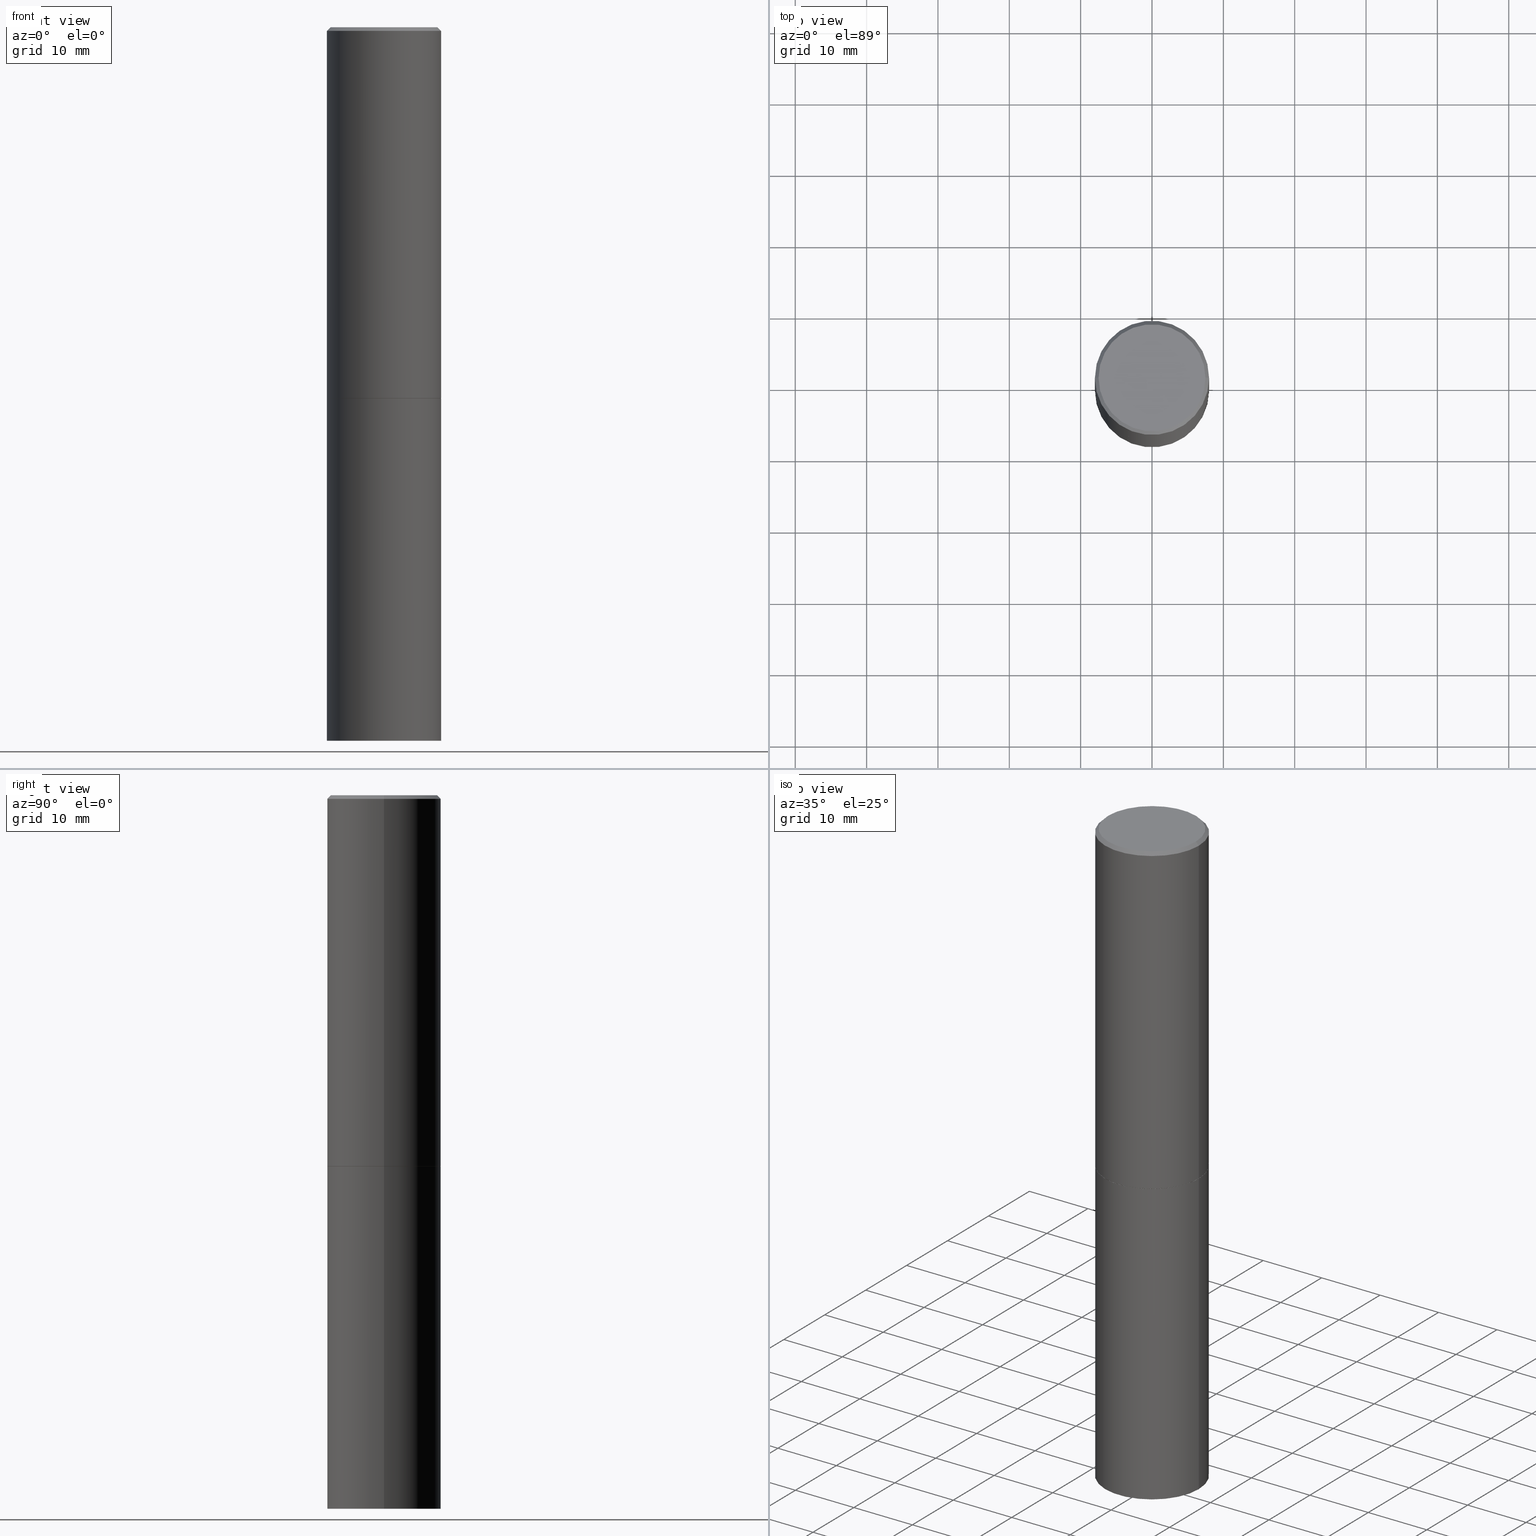
[diagram: canonical four-view strip — front | top / right | iso, engineering-drawing reading convention]
A machine part, canonical four-view strip (front | top / right | iso — engineering-drawing reading convention). The complete STEP part file that produces these views, byte-faithful:
ISO-10303-21;
HEADER;
FILE_DESCRIPTION (( 'STEP AP203' ),
    '1' );
FILE_NAME ('74482.STEP',
    '2024-02-29T11:44:14',
    ( '' ),
    ( '' ),
    'SwSTEP 2.0',
    'SolidWorks 2023',
    '' );
FILE_SCHEMA (( 'CONFIG_CONTROL_DESIGN' ));
ENDSEC;

DATA;
#1 = VERTEX_POINT ( 'NONE', #165 ) ;
#2 = DIRECTION ( 'NONE',  ( -2.445468806185136597E-29, 3.491481338843145583E-15, 1.000000000000000000 ) ) ;
#3 = DIRECTION ( 'NONE',  ( -2.445468806185136597E-29, 3.491481338843145583E-15, 1.000000000000000000 ) ) ;
#4 = ORIENTED_EDGE ( 'NONE', *, *, #10, .T. ) ;
#5 = CLOSED_SHELL ( 'NONE', ( #319, #277, #64, #117, #199, #144, #136, #37 ) ) ;
#6 = EDGE_CURVE ( 'NONE', #115, #343, #211, .T. ) ;
#7 = AXIS2_PLACEMENT_3D ( 'NONE', #265, #77, #9 ) ;
#8 = ORIENTED_EDGE ( 'NONE', *, *, #6, .T. ) ;
#9 = DIRECTION ( 'NONE',  ( 1.000000000000000000, 0.000000000000000000, 0.000000000000000000 ) ) ;
#10 = EDGE_CURVE ( 'NONE', #18, #115, #139, .T. ) ;
#11 = VERTEX_POINT ( 'NONE', #112 ) ;
#12 = DIRECTION ( 'NONE',  ( -2.445468806185136597E-29, 3.491481338843145583E-15, 1.000000000000000000 ) ) ;
#13 = AXIS2_PLACEMENT_3D ( 'NONE', #114, #232, #338 ) ;
#14 = APPLICATION_PROTOCOL_DEFINITION ( 'international standard', 'config_control_design', 1994, #317 ) ;
#15 = COORDINATED_UNIVERSAL_TIME_OFFSET ( 5, 0, .BEHIND. ) ;
#16 = VERTEX_POINT ( 'NONE', #250 ) ;
#17 = AXIS2_PLACEMENT_3D ( 'NONE', #34, #196, #230 ) ;
#18 = VERTEX_POINT ( 'NONE', #162 ) ;
#19 = PERSON_AND_ORGANIZATION_ROLE ( 'creator' ) ;
#20 = DIRECTION ( 'NONE',  ( -2.445468806185136597E-29, 3.491481338843145583E-15, 1.000000000000000000 ) ) ;
#21 = ORIENTED_EDGE ( 'NONE', *, *, #293, .F. ) ;
#22 = COORDINATED_UNIVERSAL_TIME_OFFSET ( 5, 0, .BEHIND. ) ;
#23 = CARTESIAN_POINT ( 'NONE',  ( 5.006363740022209999E-29, -7.147760596879685046E-15, -2.047199999999999243 ) ) ;
#24 = CALENDAR_DATE ( 2024, 29, 2 ) ;
#25 = CARTESIAN_POINT ( 'NONE',  ( 5.006363740022211120E-29, -7.147760596879686624E-15, -2.047199999999999687 ) ) ;
#26 = EDGE_LOOP ( 'NONE', ( #48, #143, #285, #111 ) ) ;
#27 =( GEOMETRIC_REPRESENTATION_CONTEXT ( 3 ) GLOBAL_UNCERTAINTY_ASSIGNED_CONTEXT ( ( #205 ) ) GLOBAL_UNIT_ASSIGNED_CONTEXT ( ( #98, #151, #153 ) ) REPRESENTATION_CONTEXT ( 'NONE', 'WORKASPACE' ) );
#28 = DIRECTION ( 'NONE',  ( 1.000000000000000000, -6.982962677686265922E-15, 4.876176775795935793E-29 ) ) ;
#29 = APPROVAL_ROLE ( '' ) ;
#30 = DIRECTION ( 'NONE',  ( -2.445468806185136597E-29, 3.491481338843145583E-15, 1.000000000000000000 ) ) ;
#31 = CARTESIAN_POINT ( 'NONE',  ( 0.000000000000000000, 0.000000000000000000, 0.000000000000000000 ) ) ;
#32 = ORIENTED_EDGE ( 'NONE', *, *, #110, .F. ) ;
#33 = DATE_AND_TIME ( #224, #352 ) ;
#34 = CARTESIAN_POINT ( 'NONE',  ( 0.000000000000000000, 0.000000000000000000, 0.000000000000000000 ) ) ;
#35 = PERSON_AND_ORGANIZATION ( #248, #233 ) ;
#36 = DIRECTION ( 'NONE',  ( 2.438088387897960049E-29, -3.491481338843145188E-15, -1.000000000000000000 ) ) ;
#37 = ADVANCED_FACE ( 'NONE', ( #158 ), #190, .F. ) ;
#38 = FACE_OUTER_BOUND ( 'NONE', #169, .T. ) ;
#39 = PRODUCT_DEFINITION_SHAPE ( 'NONE', 'NONE',  #300 ) ;
#40 = ORIENTED_EDGE ( 'NONE', *, *, #51, .T. ) ;
#41 = AXIS2_PLACEMENT_3D ( 'NONE', #204, #12, #315 ) ;
#42 = CARTESIAN_POINT ( 'NONE',  ( -2.087702828670439639E-46, 2.980686340760894400E-32, 8.537024980200822558E-18 ) ) ;
#43 = EDGE_LOOP ( 'NONE', ( #234, #207, #95, #126 ) ) ;
#44 = APPROVAL ( #362, 'UNSPECIFIED' ) ;
#45 = CONICAL_SURFACE ( 'NONE', #41, 0.3139500000000000068, 0.7853981633975507526 ) ;
#46 = CALENDAR_DATE ( 2024, 29, 2 ) ;
#47 = LINE ( 'NONE', #332, #152 ) ;
#48 = ORIENTED_EDGE ( 'NONE', *, *, #340, .F. ) ;
#49 = LINE ( 'NONE', #58, #219 ) ;
#50 = CIRCLE ( 'NONE', #351, 0.3149500000000000077 ) ;
#51 = EDGE_CURVE ( 'NONE', #361, #81, #306, .T. ) ;
#52 = DATE_AND_TIME ( #24, #99 ) ;
#53 = DIRECTION ( 'NONE',  ( -1.000000000000000000, 6.982962677686265922E-15, -4.876176775795935793E-29 ) ) ;
#54 = MANIFOLD_SOLID_BREP ( 'Body-Move/Copy2[1]', #167 ) ;
#55 = FACE_OUTER_BOUND ( 'NONE', #247, .T. ) ;
#56 = ORIENTED_EDGE ( 'NONE', *, *, #141, .T. ) ;
#57 = COORDINATED_UNIVERSAL_TIME_OFFSET ( 5, 0, .BEHIND. ) ;
#58 = CARTESIAN_POINT ( 'NONE',  ( 0.3149499999999997302, -2.230543471175005478E-15, -0.02000000000000006981 ) ) ;
#59 = AXIS2_PLACEMENT_3D ( 'NONE', #132, #189, #193 ) ;
#60 = AXIS2_PLACEMENT_3D ( 'NONE', #177, #30, #145 ) ;
#61 = LOCAL_TIME ( 6, 44, 14.00000000000000000, #82 ) ;
#62 = APPROVAL_DATE_TIME ( #33, #44 ) ;
#63 = FACE_OUTER_BOUND ( 'NONE', #140, .T. ) ;
#64 = ADVANCED_FACE ( 'NONE', ( #274 ), #227, .T. ) ;
#65 = DIRECTION ( 'NONE',  ( -2.445468806185136877E-29, 3.491481338843145188E-15, 1.000000000000000000 ) ) ;
#66 = DIRECTION ( 'NONE',  ( 1.000000000000000000, -6.982962677686264344E-15, 0.000000000000000000 ) ) ;
#67 = VERTEX_POINT ( 'NONE', #85 ) ;
#68 = AXIS2_PLACEMENT_3D ( 'NONE', #31, #281, #366 ) ;
#69 = AXIS2_PLACEMENT_3D ( 'NONE', #260, #3, #346 ) ;
#70 = CC_DESIGN_APPROVAL ( #44, ( #286 ) ) ;
#71 = FACE_OUTER_BOUND ( 'NONE', #175, .T. ) ;
#72 = FACE_OUTER_BOUND ( 'NONE', #303, .T. ) ;
#73 = ORIENTED_EDGE ( 'NONE', *, *, #119, .F. ) ;
#74 = DIRECTION ( 'NONE',  ( 1.000000000000000000, -6.982962677686267499E-15, 4.876053491004739391E-29 ) ) ;
#75 = AXIS2_PLACEMENT_3D ( 'NONE', #217, #137, #168 ) ;
#76 = AXIS2_PLACEMENT_3D ( 'NONE', #299, #84, #253 ) ;
#77 = DIRECTION ( 'NONE',  ( 0.000000000000000000, 0.000000000000000000, 1.000000000000000000 ) ) ;
#78 = EDGE_LOOP ( 'NONE', ( #56, #154, #282, #295 ) ) ;
#79 = DIRECTION ( 'NONE',  ( -2.445468806185136597E-29, 3.491481338843145583E-15, 1.000000000000000000 ) ) ;
#80 = PERSON_AND_ORGANIZATION ( #248, #233 ) ;
#81 = VERTEX_POINT ( 'NONE', #304 ) ;
#82 = COORDINATED_UNIVERSAL_TIME_OFFSET ( 5, 0, .BEHIND. ) ;
#83 = CARTESIAN_POINT ( 'NONE',  ( 5.006363740022209999E-29, -7.147760596879685046E-15, -2.047199999999999243 ) ) ;
#84 = DIRECTION ( 'NONE',  ( -2.445468806185136597E-29, 3.491481338843145583E-15, 1.000000000000000000 ) ) ;
#85 = CARTESIAN_POINT ( 'NONE',  ( -0.3149500000000000077, -8.209006967676138246E-15, -3.937000000000000277 ) ) ;
#86 = APPROVAL_DATE_TIME ( #328, #223 ) ;
#87 = EDGE_LOOP ( 'NONE', ( #32, #235, #128, #337 ) ) ;
#88 = CC_DESIGN_DATE_AND_TIME_ASSIGNMENT ( #353, #325, ( #300 ) ) ;
#89 = APPLICATION_PROTOCOL_DEFINITION ( 'international standard', 'config_control_design', 1994, #124 ) ;
#90 = DIRECTION ( 'NONE',  ( 1.000000000000000000, -6.982962677686264344E-15, 0.000000000000000000 ) ) ;
#91 = VECTOR ( 'NONE', #344, 39.37007874015748143 ) ;
#92 = DIRECTION ( 'NONE',  ( 1.000000000000000000, -6.982962677686267499E-15, 4.876053491004739391E-29 ) ) ;
#93 = PRODUCT ( '74482', '74482', '', ( #238 ) ) ;
#94 = FACE_OUTER_BOUND ( 'NONE', #78, .T. ) ;
#95 = ORIENTED_EDGE ( 'NONE', *, *, #267, .F. ) ;
#96 = CIRCLE ( 'NONE', #245, 0.3139500000000000068 ) ;
#97 =( LENGTH_UNIT ( ) NAMED_UNIT ( * ) SI_UNIT ( $, .METRE. ) );
#98 =( CONVERSION_BASED_UNIT ( 'INCH', #287 ) LENGTH_UNIT ( ) NAMED_UNIT ( #133 ) );
#99 = LOCAL_TIME ( 6, 44, 14.00000000000000000, #15 ) ;
#100 = DIRECTION ( 'NONE',  ( -2.445468806185136597E-29, 3.491481338843145583E-15, 1.000000000000000000 ) ) ;
#101 = AXIS2_PLACEMENT_3D ( 'NONE', #192, #107, #53 ) ;
#102 = CIRCLE ( 'NONE', #269, 0.3149500000000000077 ) ;
#103 = ORIENTED_EDGE ( 'NONE', *, *, #6, .F. ) ;
#104 = DIRECTION ( 'NONE',  ( 1.000000000000000000, -6.982962677686269866E-15, 0.000000000000000000 ) ) ;
#105 = ORIENTED_EDGE ( 'NONE', *, *, #270, .F. ) ;
#106 = PERSON_AND_ORGANIZATION_ROLE ( 'creator' ) ;
#107 = DIRECTION ( 'NONE',  ( 2.438088387897960049E-29, -3.491481338843145188E-15, -1.000000000000000000 ) ) ;
#108 = CONICAL_SURFACE ( 'NONE', #122, 0.3149499999999997302, 0.7853981633974471688 ) ;
#109 = ORIENTED_EDGE ( 'NONE', *, *, #127, .F. ) ;
#110 = EDGE_CURVE ( 'NONE', #67, #81, #329, .T. ) ;
#111 = ORIENTED_EDGE ( 'NONE', *, *, #10, .F. ) ;
#112 = CARTESIAN_POINT ( 'NONE',  ( 0.3149500000000000077, -9.343553210878133488E-15, -2.046199999999999797 ) ) ;
#113 = EDGE_CURVE ( 'NONE', #16, #173, #195, .T. ) ;
#114 = CARTESIAN_POINT ( 'NONE',  ( 5.003918271216025517E-29, -7.144269115540843617E-15, -2.046199999999999797 ) ) ;
#115 = VERTEX_POINT ( 'NONE', #214 ) ;
#116 = CARTESIAN_POINT ( 'NONE',  ( -0.3139500000000000068, -4.911713223612629246E-15, -2.047199999999999243 ) ) ;
#117 = ADVANCED_FACE ( 'NONE', ( #163 ), #108, .T. ) ;
#118 = CYLINDRICAL_SURFACE ( 'NONE', #17, 0.3149500000000000077 ) ;
#119 = EDGE_CURVE ( 'NONE', #1, #343, #49, .T. ) ;
#120 = LINE ( 'NONE', #256, #335 ) ;
#121 = EDGE_CURVE ( 'NONE', #173, #16, #96, .T. ) ;
#122 = AXIS2_PLACEMENT_3D ( 'NONE', #243, #333, #359 ) ;
#123 = APPROVAL_PERSON_ORGANIZATION ( #35, #44, #29 ) ;
#124 = APPLICATION_CONTEXT ( 'configuration controlled 3d designs of mechanical parts and assemblies' ) ;
#125 = PLANE ( 'NONE',  #290 ) ;
#126 = ORIENTED_EDGE ( 'NONE', *, *, #348, .F. ) ;
#127 = EDGE_CURVE ( 'NONE', #314, #115, #47, .T. ) ;
#128 = ORIENTED_EDGE ( 'NONE', *, *, #208, .T. ) ;
#129 = AXIS2_PLACEMENT_3D ( 'NONE', #272, #279, #28 ) ;
#130 = DATE_TIME_ROLE ( 'classification_date' ) ;
#131 = CONICAL_SURFACE ( 'NONE', #365, 0.3139500000000000068, 0.7853981633975507526 ) ;
#132 = CARTESIAN_POINT ( 'NONE',  ( 4.890937612370289799E-31, -6.982962677686315028E-17, -0.02000000000000006981 ) ) ;
#133 = DIMENSIONAL_EXPONENTS ( 1.000000000000000000, 0.000000000000000000, 0.000000000000000000, 0.000000000000000000, 0.000000000000000000, 0.000000000000000000, 0.000000000000000000 ) ;
#134 = APPROVAL_STATUS ( 'not_yet_approved' ) ;
#135 = DIRECTION ( 'NONE',  ( -2.445468806185136597E-29, 3.491481338843145583E-15, 1.000000000000000000 ) ) ;
#136 = ADVANCED_FACE ( 'NONE', ( #294 ), #221, .F. ) ;
#137 = DIRECTION ( 'NONE',  ( 2.445468806185136597E-29, -3.491481338843145583E-15, -1.000000000000000000 ) ) ;
#138 = PERSON_AND_ORGANIZATION ( #248, #233 ) ;
#139 = LINE ( 'NONE', #354, #261 ) ;
#140 = EDGE_LOOP ( 'NONE', ( #202, #21 ) ) ;
#141 = EDGE_CURVE ( 'NONE', #266, #67, #212, .T. ) ;
#142 = DIRECTION ( 'NONE',  ( -0.7071067811866199593, 7.493145998870616062E-15, 0.7071067811864750752 ) ) ;
#143 = ORIENTED_EDGE ( 'NONE', *, *, #119, .T. ) ;
#144 = ADVANCED_FACE ( 'NONE', ( #55 ), #131, .T. ) ;
#145 = DIRECTION ( 'NONE',  ( 1.000000000000000000, -6.982962677686266711E-15, 4.876176775795936353E-29 ) ) ;
#146 = CC_DESIGN_APPROVAL ( #345, ( #300 ) ) ;
#147 = DIRECTION ( 'NONE',  ( -2.445468806185136597E-29, 3.491481338843145583E-15, 1.000000000000000000 ) ) ;
#148 = DIRECTION ( 'NONE',  ( -1.000000000000000000, 6.982962677686265922E-15, -4.876176775795935793E-29 ) ) ;
#149 = DIRECTION ( 'NONE',  ( -2.445468806185136597E-29, 3.491481338843145583E-15, 1.000000000000000000 ) ) ;
#150 = CARTESIAN_POINT ( 'NONE',  ( 2.199284095337339175E-15, 0.3149499999999928468, -2.047200000000001019 ) ) ;
#151 =( NAMED_UNIT ( * ) PLANE_ANGLE_UNIT ( ) SI_UNIT ( $, .RADIAN. ) );
#152 = VECTOR ( 'NONE', #326, 39.37007874015748143 ) ;
#153 =( NAMED_UNIT ( * ) SI_UNIT ( $, .STERADIAN. ) SOLID_ANGLE_UNIT ( ) );
#154 = ORIENTED_EDGE ( 'NONE', *, *, #110, .T. ) ;
#155 = ORIENTED_EDGE ( 'NONE', *, *, #166, .T. ) ;
#156 = PERSON_AND_ORGANIZATION_ROLE ( 'classification_officer' ) ;
#157 = CC_DESIGN_DATE_AND_TIME_ASSIGNMENT ( #271, #130, ( #286 ) ) ;
#158 = FACE_OUTER_BOUND ( 'NONE', #159, .T. ) ;
#159 = EDGE_LOOP ( 'NONE', ( #341, #216 ) ) ;
#160 = CALENDAR_DATE ( 2024, 29, 2 ) ;
#161 = APPROVAL_PERSON_ORGANIZATION ( #291, #223, #188 ) ;
#162 = CARTESIAN_POINT ( 'NONE',  ( -0.2949499999999997124, 2.094539655171993740E-15, 8.537024980186296424E-18 ) ) ;
#163 = FACE_OUTER_BOUND ( 'NONE', #178, .T. ) ;
#164 = APPROVAL_DATE_TIME ( #52, #345 ) ;
#165 = CARTESIAN_POINT ( 'NONE',  ( 0.2949499999999997124, -2.127023677808858103E-15, 8.537024980215462707E-18 ) ) ;
#166 = EDGE_CURVE ( 'NONE', #81, #361, #218, .T. ) ;
#167 = CLOSED_SHELL ( 'NONE', ( #184, #283, #355, #179 ) ) ;
#168 = DIRECTION ( 'NONE',  ( -1.000000000000000000, 6.982962677686266711E-15, 0.000000000000000000 ) ) ;
#169 = EDGE_LOOP ( 'NONE', ( #40, #155 ) ) ;
#170 = SHAPE_DEFINITION_REPRESENTATION ( #39, #312 ) ;
#171 = DIRECTION ( 'NONE',  ( -1.000000000000000000, 6.982962677686265922E-15, -4.876176775795935793E-29 ) ) ;
#172 = CARTESIAN_POINT ( 'NONE',  ( 0.3149500000000000077, -1.594524612636275486E-14, -3.937000000000000277 ) ) ;
#173 = VERTEX_POINT ( 'NONE', #116 ) ;
#174 = CARTESIAN_POINT ( 'NONE',  ( 5.006363740022211120E-29, -7.147760596879686624E-15, -2.047199999999999687 ) ) ;
#175 = EDGE_LOOP ( 'NONE', ( #268, #357, #183, #105 ) ) ;
#176 = MANIFOLD_SOLID_BREP ( 'Body-Move/Copy2[2]', #5 ) ;
#177 = CARTESIAN_POINT ( 'NONE',  ( 0.000000000000000000, 0.000000000000000000, 0.000000000000000000 ) ) ;
#178 = EDGE_LOOP ( 'NONE', ( #73, #264, #4, #8 ) ) ;
#179 = ADVANCED_FACE ( 'NONE', ( #200 ), #118, .T. ) ;
#180 = AXIS2_PLACEMENT_3D ( 'NONE', #258, #36, #171 ) ;
#181 = CARTESIAN_POINT ( 'NONE',  ( 0.3149500000000000077, -9.347044692216978073E-15, -2.047199999999999687 ) ) ;
#182 = DESIGN_CONTEXT ( 'detailed design', #124, 'design' ) ;
#183 = ORIENTED_EDGE ( 'NONE', *, *, #289, .F. ) ;
#184 = ADVANCED_FACE ( 'NONE', ( #94 ), #313, .T. ) ;
#185 = CC_DESIGN_SECURITY_CLASSIFICATION ( #286, ( #316 ) ) ;
#186 = FACE_OUTER_BOUND ( 'NONE', #43, .T. ) ;
#187 = DIRECTION ( 'NONE',  ( -2.445468806185136597E-29, 3.491481338843145583E-15, 1.000000000000000000 ) ) ;
#188 = APPROVAL_ROLE ( '' ) ;
#189 = DIRECTION ( 'NONE',  ( -2.445468806185136597E-29, 3.491481338843145583E-15, 1.000000000000000000 ) ) ;
#190 = PLANE ( 'NONE',  #101 ) ;
#191 = PERSON_AND_ORGANIZATION_ROLE ( 'design_supplier' ) ;
#192 = CARTESIAN_POINT ( 'NONE',  ( 2.059624841783562091E-15, 0.2949499999999997124, -1.025543908401684366E-15 ) ) ;
#193 = DIRECTION ( 'NONE',  ( 1.000000000000000000, -6.982962677686266711E-15, 0.000000000000000000 ) ) ;
#194 = CC_DESIGN_PERSON_AND_ORGANIZATION_ASSIGNMENT ( #215, #19, ( #300 ) ) ;
#195 = CIRCLE ( 'NONE', #76, 0.3139500000000000068 ) ;
#196 = DIRECTION ( 'NONE',  ( -2.445468806185136597E-29, 3.491481338843145583E-15, 1.000000000000000000 ) ) ;
#197 = LINE ( 'NONE', #225, #201 ) ;
#198 = DIRECTION ( 'NONE',  ( 1.000000000000000000, -6.982962677686265922E-15, 4.876176775795935232E-29 ) ) ;
#199 = ADVANCED_FACE ( 'NONE', ( #72 ), #229, .T. ) ;
#200 = FACE_OUTER_BOUND ( 'NONE', #87, .T. ) ;
#201 = VECTOR ( 'NONE', #65, 39.37007874015748143 ) ;
#202 = ORIENTED_EDGE ( 'NONE', *, *, #141, .F. ) ;
#203 = LOCAL_TIME ( 6, 44, 14.00000000000000000, #273 ) ;
#204 = CARTESIAN_POINT ( 'NONE',  ( 5.006363740022209999E-29, -7.147760596879685046E-15, -2.047199999999999243 ) ) ;
#205 = UNCERTAINTY_MEASURE_WITH_UNIT (LENGTH_MEASURE( 1.000000000000000082E-05 ), #98, 'distance_accuracy_value', 'NONE');
#206 = DIRECTION ( 'NONE',  ( 1.000000000000000000, -6.982962677686266711E-15, 0.000000000000000000 ) ) ;
#207 = ORIENTED_EDGE ( 'NONE', *, *, #263, .T. ) ;
#208 = EDGE_CURVE ( 'NONE', #266, #361, #363, .T. ) ;
#209 = CARTESIAN_POINT ( 'NONE',  ( 9.627810689950883669E-29, -1.374596203102546341E-14, -3.937000000000000277 ) ) ;
#210 = ORIENTED_EDGE ( 'NONE', *, *, #270, .T. ) ;
#211 = CIRCLE ( 'NONE', #59, 0.3149499999999997302 ) ;
#212 = CIRCLE ( 'NONE', #239, 0.3149500000000000077 ) ;
#213 = CC_DESIGN_APPROVAL ( #223, ( #316 ) ) ;
#214 = CARTESIAN_POINT ( 'NONE',  ( -0.3149499999999997302, 2.129454468560424601E-15, -0.02000000000000006981 ) ) ;
#215 = PERSON_AND_ORGANIZATION ( #248, #233 ) ;
#216 = ORIENTED_EDGE ( 'NONE', *, *, #340, .T. ) ;
#217 = CARTESIAN_POINT ( 'NONE',  ( 4.890937612370289799E-31, -6.982962677686315028E-17, -0.02000000000000006981 ) ) ;
#218 = CIRCLE ( 'NONE', #342, 0.3149500000000000077 ) ;
#219 = VECTOR ( 'NONE', #276, 39.37007874015748143 ) ;
#220 = CALENDAR_DATE ( 2024, 29, 2 ) ;
#221 = PLANE ( 'NONE',  #129 ) ;
#222 = CARTESIAN_POINT ( 'NONE',  ( -0.3149500000000000077, 2.237854346276435590E-15, -1.549218606675782676E-29 ) ) ;
#223 = APPROVAL ( #134, 'UNSPECIFIED' ) ;
#224 = CALENDAR_DATE ( 2024, 29, 2 ) ;
#225 = CARTESIAN_POINT ( 'NONE',  ( 0.3149499999999998967, -2.199284095337288688E-15, 1.535751875536929289E-29 ) ) ;
#226 = ORIENTED_EDGE ( 'NONE', *, *, #305, .T. ) ;
#227 = CONICAL_SURFACE ( 'NONE', #75, 0.3149499999999997302, 0.7853981633974471688 ) ;
#228 = AXIS2_PLACEMENT_3D ( 'NONE', #42, #79, #74 ) ;
#229 = CYLINDRICAL_SURFACE ( 'NONE', #298, 0.3149499999999998967 ) ;
#230 = DIRECTION ( 'NONE',  ( 1.000000000000000000, -6.982962677686266711E-15, 4.876176775795936353E-29 ) ) ;
#231 = ORIENTED_EDGE ( 'NONE', *, *, #121, .F. ) ;
#232 = DIRECTION ( 'NONE',  ( -2.445468806185136597E-29, 3.491481338843145583E-15, 1.000000000000000000 ) ) ;
#233 = ORGANIZATION ( 'UNSPECIFIED', 'UNSPECIFIED', '' ) ;
#234 = ORIENTED_EDGE ( 'NONE', *, *, #113, .T. ) ;
#235 = ORIENTED_EDGE ( 'NONE', *, *, #293, .T. ) ;
#236 = CARTESIAN_POINT ( 'NONE',  ( 5.003918271216025517E-29, -7.144269115540843617E-15, -2.046199999999999797 ) ) ;
#237 = ORIENTED_EDGE ( 'NONE', *, *, #263, .F. ) ;
#238 = MECHANICAL_CONTEXT ( 'NONE', #317, 'mechanical' ) ;
#239 = AXIS2_PLACEMENT_3D ( 'NONE', #302, #135, #350 ) ;
#240 = DIRECTION ( 'NONE',  ( 2.438088387897960049E-29, -3.491481338843145188E-15, -1.000000000000000000 ) ) ;
#241 = CC_DESIGN_PERSON_AND_ORGANIZATION_ASSIGNMENT ( #356, #106, ( #316 ) ) ;
#242 = PERSON_AND_ORGANIZATION_ROLE ( 'design_owner' ) ;
#243 = CARTESIAN_POINT ( 'NONE',  ( 4.890937612370289799E-31, -6.982962677686315028E-17, -0.02000000000000006981 ) ) ;
#244 = AXIS2_PLACEMENT_3D ( 'NONE', #25, #251, #104 ) ;
#245 = AXIS2_PLACEMENT_3D ( 'NONE', #23, #20, #90 ) ;
#246 = APPROVAL_ROLE ( '' ) ;
#247 = EDGE_LOOP ( 'NONE', ( #237, #323, #259, #327 ) ) ;
#248 = PERSON ( 'UNSPECIFIED', 'UNSPECIFIED', 'UNSPECIFIED', ('UNSPECIFIED'), ('UNSPECIFIED'), ('UNSPECIFIED') ) ;
#249 = PRODUCT_RELATED_PRODUCT_CATEGORY ( 'detail', '', ( #93 ) ) ;
#250 = CARTESIAN_POINT ( 'NONE',  ( 0.3139500000000000068, -9.340061729539288903E-15, -2.047199999999999243 ) ) ;
#251 = DIRECTION ( 'NONE',  ( -2.445468806185136597E-29, 3.491481338843145583E-15, 1.000000000000000000 ) ) ;
#252 = CIRCLE ( 'NONE', #228, 0.2949499999999997124 ) ;
#253 = DIRECTION ( 'NONE',  ( 1.000000000000000000, -6.982962677686264344E-15, 0.000000000000000000 ) ) ;
#254 = EDGE_CURVE ( 'NONE', #18, #1, #360, .T. ) ;
#255 = PLANE ( 'NONE',  #180 ) ;
#256 = CARTESIAN_POINT ( 'NONE',  ( -0.3139500000000000068, -4.917011677960851648E-15, -2.047199999999999243 ) ) ;
#257 = APPROVAL_PERSON_ORGANIZATION ( #275, #345, #246 ) ;
#258 = CARTESIAN_POINT ( 'NONE',  ( 2.199284095337385323E-15, 0.3149499999999862965, -3.937000000000001165 ) ) ;
#259 = ORIENTED_EDGE ( 'NONE', *, *, #348, .T. ) ;
#260 = CARTESIAN_POINT ( 'NONE',  ( 4.890937612370289799E-31, -6.982962677686315028E-17, -0.02000000000000006981 ) ) ;
#261 = VECTOR ( 'NONE', #278, 39.37007874015748143 ) ;
#262 = VECTOR ( 'NONE', #309, 39.37007874015748143 ) ;
#263 = EDGE_CURVE ( 'NONE', #173, #314, #120, .T. ) ;
#264 = ORIENTED_EDGE ( 'NONE', *, *, #254, .F. ) ;
#265 = CARTESIAN_POINT ( 'NONE',  ( 0.000000000000000000, 0.000000000000000000, 0.000000000000000000 ) ) ;
#266 = VERTEX_POINT ( 'NONE', #172 ) ;
#267 = EDGE_CURVE ( 'NONE', #11, #314, #331, .T. ) ;
#268 = ORIENTED_EDGE ( 'NONE', *, *, #267, .T. ) ;
#269 = AXIS2_PLACEMENT_3D ( 'NONE', #209, #149, #349 ) ;
#270 = EDGE_CURVE ( 'NONE', #11, #343, #197, .T. ) ;
#271 = DATE_AND_TIME ( #160, #203 ) ;
#272 = CARTESIAN_POINT ( 'NONE',  ( 5.006363740022211680E-29, -7.147760596879688202E-15, -2.047200000000000131 ) ) ;
#273 = COORDINATED_UNIVERSAL_TIME_OFFSET ( 5, 0, .BEHIND. ) ;
#274 = FACE_OUTER_BOUND ( 'NONE', #26, .T. ) ;
#275 = PERSON_AND_ORGANIZATION ( #248, #233 ) ;
#276 = DIRECTION ( 'NONE',  ( 0.7071067811865466846, -7.319954787623252890E-15, -0.7071067811865483499 ) ) ;
#277 = ADVANCED_FACE ( 'NONE', ( #71 ), #280, .T. ) ;
#278 = DIRECTION ( 'NONE',  ( -0.7071067811865466846, 2.468850131082247989E-15, -0.7071067811865483499 ) ) ;
#279 = DIRECTION ( 'NONE',  ( -2.438088387897960049E-29, 3.491481338843145188E-15, 1.000000000000000000 ) ) ;
#280 = CYLINDRICAL_SURFACE ( 'NONE', #68, 0.3149499999999998967 ) ;
#281 = DIRECTION ( 'NONE',  ( -2.445468806185136597E-29, 3.491481338843145583E-15, 1.000000000000000000 ) ) ;
#282 = ORIENTED_EDGE ( 'NONE', *, *, #51, .F. ) ;
#283 = ADVANCED_FACE ( 'NONE', ( #63 ), #255, .T. ) ;
#284 = CARTESIAN_POINT ( 'NONE',  ( -2.087702828670439639E-46, 2.980686340760894400E-32, 8.537024980200822558E-18 ) ) ;
#285 = ORIENTED_EDGE ( 'NONE', *, *, #289, .T. ) ;
#286 = SECURITY_CLASSIFICATION ( '', '', #301 ) ;
#287 = LENGTH_MEASURE_WITH_UNIT ( LENGTH_MEASURE( 0.02539999999999999897 ), #97 );
#288 = CARTESIAN_POINT ( 'NONE',  ( 0.3139500000000000068, -9.340061729539288903E-15, -2.047199999999999243 ) ) ;
#289 = EDGE_CURVE ( 'NONE', #343, #115, #307, .T. ) ;
#290 = AXIS2_PLACEMENT_3D ( 'NONE', #150, #240, #148 ) ;
#291 = PERSON_AND_ORGANIZATION ( #248, #233 ) ;
#292 = EDGE_LOOP ( 'NONE', ( #339, #231 ) ) ;
#293 = EDGE_CURVE ( 'NONE', #67, #266, #102, .T. ) ;
#294 = FACE_OUTER_BOUND ( 'NONE', #292, .T. ) ;
#295 = ORIENTED_EDGE ( 'NONE', *, *, #208, .F. ) ;
#296 = PERSON_AND_ORGANIZATION ( #248, #233 ) ;
#297 = DIRECTION ( 'NONE',  ( -2.445468806185136877E-29, 3.491481338843145188E-15, 1.000000000000000000 ) ) ;
#298 = AXIS2_PLACEMENT_3D ( 'NONE', #311, #336, #198 ) ;
#299 = CARTESIAN_POINT ( 'NONE',  ( 5.006363740022209999E-29, -7.147760596879685046E-15, -2.047199999999999243 ) ) ;
#300 = PRODUCT_DEFINITION ( 'UNKNOWN', '', #316, #182 ) ;
#301 = SECURITY_CLASSIFICATION_LEVEL ( 'unclassified' ) ;
#302 = CARTESIAN_POINT ( 'NONE',  ( 9.627810689950883669E-29, -1.374596203102546341E-14, -3.937000000000000277 ) ) ;
#303 = EDGE_LOOP ( 'NONE', ( #109, #226, #210, #103 ) ) ;
#304 = CARTESIAN_POINT ( 'NONE',  ( -0.3149500000000000077, -8.209006967676138246E-15, -2.047199999999999687 ) ) ;
#305 = EDGE_CURVE ( 'NONE', #314, #11, #50, .T. ) ;
#306 = CIRCLE ( 'NONE', #244, 0.3149500000000000077 ) ;
#307 = CIRCLE ( 'NONE', #69, 0.3149499999999997302 ) ;
#308 = CARTESIAN_POINT ( 'NONE',  ( 0.3149500000000000077, -2.199284095337289871E-15, 1.535751875536930130E-29 ) ) ;
#309 = DIRECTION ( 'NONE',  ( -2.445468806185136877E-29, 3.491481338843145188E-15, 1.000000000000000000 ) ) ;
#310 = CC_DESIGN_PERSON_AND_ORGANIZATION_ASSIGNMENT ( #296, #191, ( #316 ) ) ;
#311 = CARTESIAN_POINT ( 'NONE',  ( 0.000000000000000000, 0.000000000000000000, 0.000000000000000000 ) ) ;
#312 = ADVANCED_BREP_SHAPE_REPRESENTATION ( '74482', ( #54, #176, #7 ), #27 ) ;
#313 = CYLINDRICAL_SURFACE ( 'NONE', #60, 0.3149500000000000077 ) ;
#314 = VERTEX_POINT ( 'NONE', #321 ) ;
#315 = DIRECTION ( 'NONE',  ( 1.000000000000000000, -6.982962677686264344E-15, 0.000000000000000000 ) ) ;
#316 = PRODUCT_DEFINITION_FORMATION_WITH_SPECIFIED_SOURCE ( 'ANY', '', #93, .NOT_KNOWN. ) ;
#317 = APPLICATION_CONTEXT ( 'configuration controlled 3d designs of mechanical parts and assemblies' ) ;
#318 = CARTESIAN_POINT ( 'NONE',  ( 0.3149499999999997302, -2.230543471175005478E-15, -0.02000000000000006981 ) ) ;
#319 = ADVANCED_FACE ( 'NONE', ( #186 ), #45, .T. ) ;
#320 = LINE ( 'NONE', #288, #91 ) ;
#321 = CARTESIAN_POINT ( 'NONE',  ( -0.3149500000000000077, -1.369195024882416092E-15, -2.046199999999999797 ) ) ;
#322 = AXIS2_PLACEMENT_3D ( 'NONE', #284, #2, #92 ) ;
#323 = ORIENTED_EDGE ( 'NONE', *, *, #121, .T. ) ;
#324 = CC_DESIGN_PERSON_AND_ORGANIZATION_ASSIGNMENT ( #80, #242, ( #93 ) ) ;
#325 = DATE_TIME_ROLE ( 'creation_date' ) ;
#326 = DIRECTION ( 'NONE',  ( -2.445468806185136877E-29, 3.491481338843145188E-15, 1.000000000000000000 ) ) ;
#327 = ORIENTED_EDGE ( 'NONE', *, *, #305, .F. ) ;
#328 = DATE_AND_TIME ( #46, #61 ) ;
#329 = LINE ( 'NONE', #222, #334 ) ;
#330 = CC_DESIGN_PERSON_AND_ORGANIZATION_ASSIGNMENT ( #138, #156, ( #286 ) ) ;
#331 = CIRCLE ( 'NONE', #13, 0.3149500000000000077 ) ;
#332 = CARTESIAN_POINT ( 'NONE',  ( -0.3149499999999998967, 2.237854346276434801E-15, -1.549218606675782116E-29 ) ) ;
#333 = DIRECTION ( 'NONE',  ( 2.445468806185136597E-29, -3.491481338843145583E-15, -1.000000000000000000 ) ) ;
#334 = VECTOR ( 'NONE', #297, 39.37007874015748143 ) ;
#335 = VECTOR ( 'NONE', #142, 39.37007874015748143 ) ;
#336 = DIRECTION ( 'NONE',  ( -2.445468806185136597E-29, 3.491481338843145583E-15, 1.000000000000000000 ) ) ;
#337 = ORIENTED_EDGE ( 'NONE', *, *, #166, .F. ) ;
#338 = DIRECTION ( 'NONE',  ( 1.000000000000000000, -6.982962677686266711E-15, 0.000000000000000000 ) ) ;
#339 = ORIENTED_EDGE ( 'NONE', *, *, #113, .F. ) ;
#340 = EDGE_CURVE ( 'NONE', #1, #18, #252, .T. ) ;
#341 = ORIENTED_EDGE ( 'NONE', *, *, #254, .T. ) ;
#342 = AXIS2_PLACEMENT_3D ( 'NONE', #174, #147, #364 ) ;
#343 = VERTEX_POINT ( 'NONE', #318 ) ;
#344 = DIRECTION ( 'NONE',  ( 0.7071067811866199593, -2.468850131083015945E-15, 0.7071067811864750752 ) ) ;
#345 = APPROVAL ( #358, 'UNSPECIFIED' ) ;
#346 = DIRECTION ( 'NONE',  ( 1.000000000000000000, -6.982962677686266711E-15, 0.000000000000000000 ) ) ;
#347 = LOCAL_TIME ( 6, 44, 14.00000000000000000, #22 ) ;
#348 = EDGE_CURVE ( 'NONE', #16, #11, #320, .T. ) ;
#349 = DIRECTION ( 'NONE',  ( 1.000000000000000000, -6.982962677686269866E-15, 0.000000000000000000 ) ) ;
#350 = DIRECTION ( 'NONE',  ( 1.000000000000000000, -6.982962677686269866E-15, 0.000000000000000000 ) ) ;
#351 = AXIS2_PLACEMENT_3D ( 'NONE', #236, #100, #206 ) ;
#352 = LOCAL_TIME ( 6, 44, 14.00000000000000000, #57 ) ;
#353 = DATE_AND_TIME ( #220, #347 ) ;
#354 = CARTESIAN_POINT ( 'NONE',  ( -0.3149499999999997302, 2.129454468560424601E-15, -0.02000000000000006981 ) ) ;
#355 = ADVANCED_FACE ( 'NONE', ( #38 ), #125, .F. ) ;
#356 = PERSON_AND_ORGANIZATION ( #248, #233 ) ;
#357 = ORIENTED_EDGE ( 'NONE', *, *, #127, .T. ) ;
#358 = APPROVAL_STATUS ( 'not_yet_approved' ) ;
#359 = DIRECTION ( 'NONE',  ( -1.000000000000000000, 6.982962677686266711E-15, 0.000000000000000000 ) ) ;
#360 = CIRCLE ( 'NONE', #322, 0.2949499999999997124 ) ;
#361 = VERTEX_POINT ( 'NONE', #181 ) ;
#362 = APPROVAL_STATUS ( 'not_yet_approved' ) ;
#363 = LINE ( 'NONE', #308, #262 ) ;
#364 = DIRECTION ( 'NONE',  ( 1.000000000000000000, -6.982962677686269866E-15, 0.000000000000000000 ) ) ;
#365 = AXIS2_PLACEMENT_3D ( 'NONE', #83, #187, #66 ) ;
#366 = DIRECTION ( 'NONE',  ( 1.000000000000000000, -6.982962677686265922E-15, 4.876176775795935232E-29 ) ) ;
ENDSEC;
END-ISO-10303-21;
